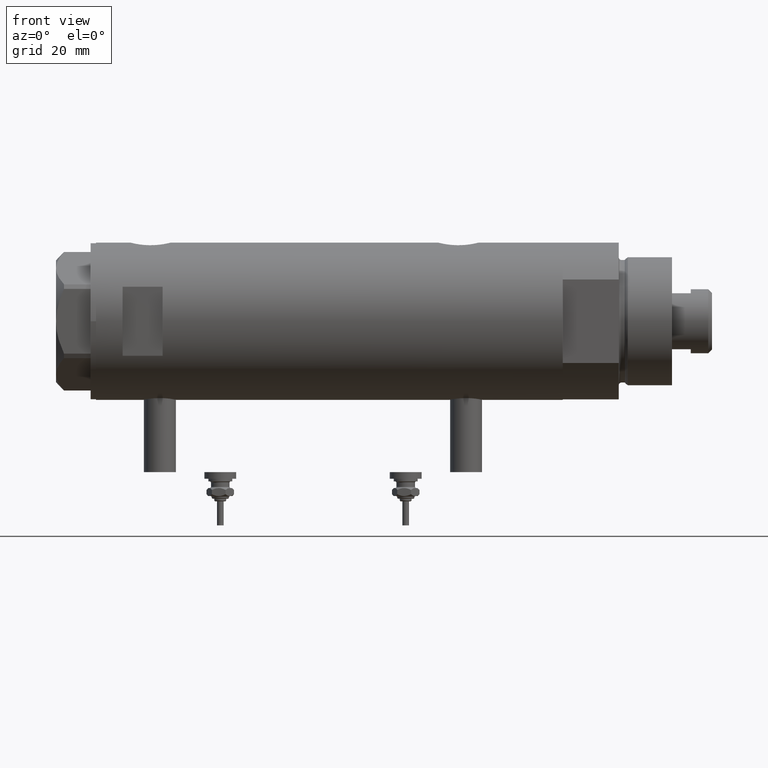
[diagram: clean part render]
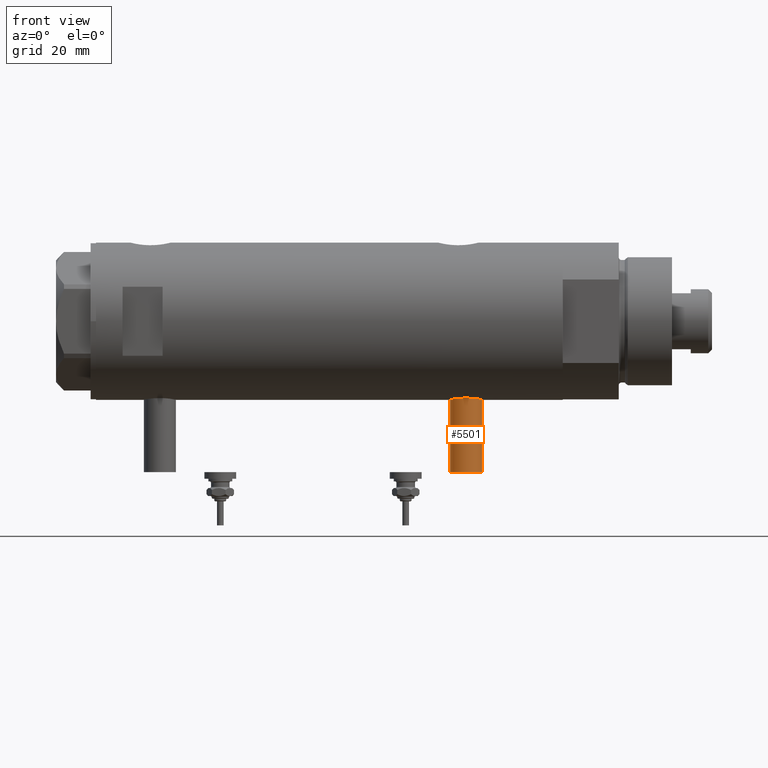
[diagram: same view with one face highlighted and labeled with its STEP entity id]
A machine part, front view. The second image highlights one B-rep face of the part: STEP entity #5501.
In plain terms, the highlighted cylindrical surface (edge-blend (fillet) strip) has radius 6 mm, axis along (0, 0, 1).
Its self-contained STEP definition (entity closure, byte-faithful):
#42 = VERTEX_POINT ( 'NONE', #1066 ) ;
#71 = DIRECTION ( 'NONE',  ( 1.000000000000000000, -0.000000000000000000, -0.000000000000000000 ) ) ;
#508 = DIRECTION ( 'NONE',  ( 0.000000000000000000, 0.000000000000000000, -1.000000000000000000 ) ) ;
#520 = LINE ( 'NONE', #2330, #4341 ) ;
#569 = DIRECTION ( 'NONE',  ( -1.000000000000000000, 0.000000000000000000, 0.000000000000000000 ) ) ;
#627 = DIRECTION ( 'NONE',  ( 0.000000000000000000, 0.000000000000000000, 1.000000000000000000 ) ) ;
#635 = CARTESIAN_POINT ( 'NONE',  ( -56.60000000000000142, 0.000000000000000000, -57.30000000000000426 ) ) ;
#657 = CARTESIAN_POINT ( 'NONE',  ( -28.30000000000000071, 0.000000000000000000, -51.29999999999999716 ) ) ;
#928 = CYLINDRICAL_SURFACE ( 'NONE', #4582, 6.000000000000005329 ) ;
#1066 = CARTESIAN_POINT ( 'NONE',  ( -28.30000000000000071, 7.347880794884119736E-16, -45.29999999999999005 ) ) ;
#1292 = DIRECTION ( 'NONE',  ( 0.000000000000000000, 0.000000000000000000, 1.000000000000000000 ) ) ;
#1597 = DIRECTION ( 'NONE',  ( 1.000000000000000000, -0.000000000000000000, -0.000000000000000000 ) ) ;
#1727 = CARTESIAN_POINT ( 'NONE',  ( -28.30000000000000071, 0.000000000000000000, -57.30000000000000426 ) ) ;
#1997 = AXIS2_PLACEMENT_3D ( 'NONE', #657, #569, #627 ) ;
#2171 = ORIENTED_EDGE ( 'NONE', *, *, #5274, .T. ) ;
#2316 = FACE_OUTER_BOUND ( 'NONE', #2857, .T. ) ;
#2330 = CARTESIAN_POINT ( 'NONE',  ( -56.60000000000000142, 7.347880794884122694E-16, -45.29999999999999005 ) ) ;
#2526 = EDGE_CURVE ( 'NONE', #4840, #42, #520, .T. ) ;
#2625 = VERTEX_POINT ( 'NONE', #635 ) ;
#2802 = CARTESIAN_POINT ( 'NONE',  ( -56.60000000000000142, 7.347880794884119736E-16, -45.29999999999999005 ) ) ;
#2857 = EDGE_LOOP ( 'NONE', ( #5897, #3479, #4170, #2171 ) ) ;
#3068 = DIRECTION ( 'NONE',  ( -1.000000000000000000, 0.000000000000000000, 0.000000000000000000 ) ) ;
#3267 = EDGE_CURVE ( 'NONE', #2625, #4840, #3990, .T. ) ;
#3479 = ORIENTED_EDGE ( 'NONE', *, *, #3267, .F. ) ;
#3535 = LINE ( 'NONE', #5713, #4868 ) ;
#3589 = CARTESIAN_POINT ( 'NONE',  ( -56.60000000000000142, 0.000000000000000000, -51.29999999999999716 ) ) ;
#3990 = CIRCLE ( 'NONE', #5139, 6.000000000000005329 ) ;
#4067 = DIRECTION ( 'NONE',  ( 1.000000000000000000, -0.000000000000000000, -0.000000000000000000 ) ) ;
#4170 = ORIENTED_EDGE ( 'NONE', *, *, #4964, .T. ) ;
#4341 = VECTOR ( 'NONE', #71, 1000.000000000000000 ) ;
#4582 = AXIS2_PLACEMENT_3D ( 'NONE', #5464, #4067, #508 ) ;
#4840 = VERTEX_POINT ( 'NONE', #2802 ) ;
#4868 = VECTOR ( 'NONE', #1597, 1000.000000000000000 ) ;
#4964 = EDGE_CURVE ( 'NONE', #2625, #5380, #3535, .T. ) ;
#5139 = AXIS2_PLACEMENT_3D ( 'NONE', #3589, #3068, #1292 ) ;
#5248 = CIRCLE ( 'NONE', #1997, 6.000000000000005329 ) ;
#5274 = EDGE_CURVE ( 'NONE', #5380, #42, #5248, .T. ) ;
#5380 = VERTEX_POINT ( 'NONE', #1727 ) ;
#5464 = CARTESIAN_POINT ( 'NONE',  ( -56.60000000000000142, 0.000000000000000000, -51.29999999999999716 ) ) ;
#5501 = ADVANCED_FACE ( 'NONE', ( #2316 ), #928, .T. ) ;
#5713 = CARTESIAN_POINT ( 'NONE',  ( -56.60000000000000142, 0.000000000000000000, -57.30000000000000426 ) ) ;
#5897 = ORIENTED_EDGE ( 'NONE', *, *, #2526, .F. ) ;